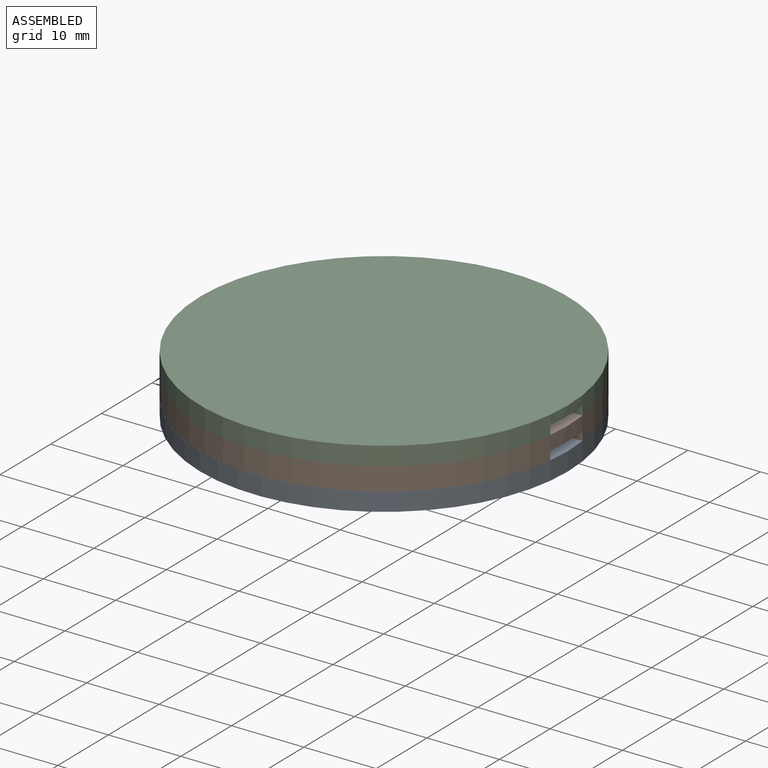
[diagram: assembled view]
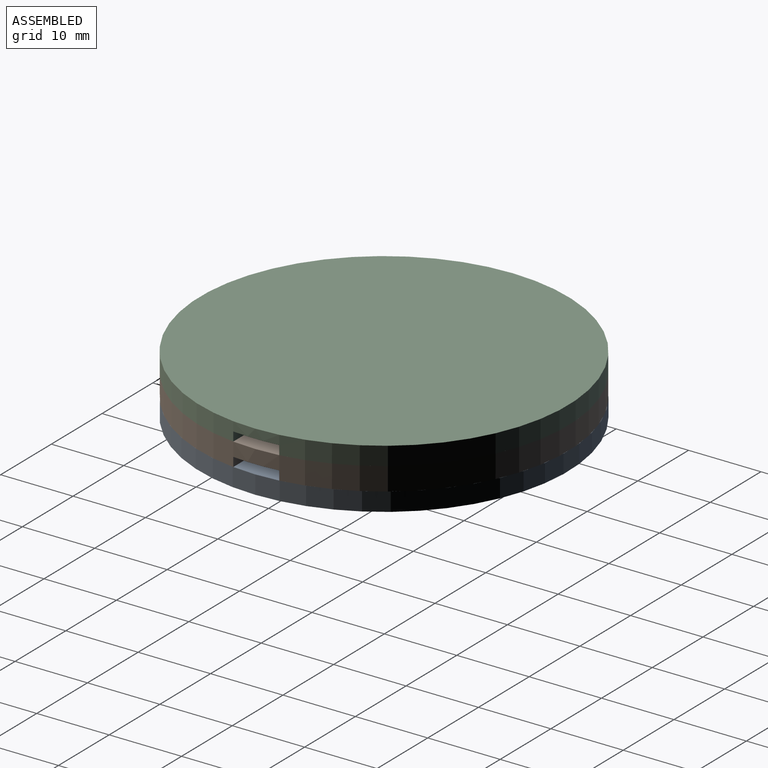
[diagram: assembled view, second angle]
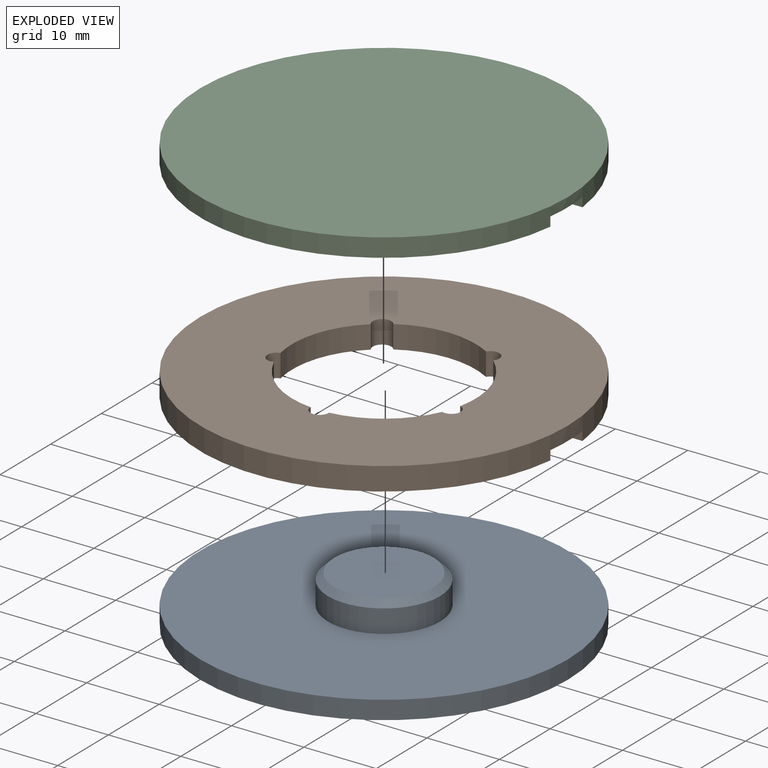
[diagram: exploded view]
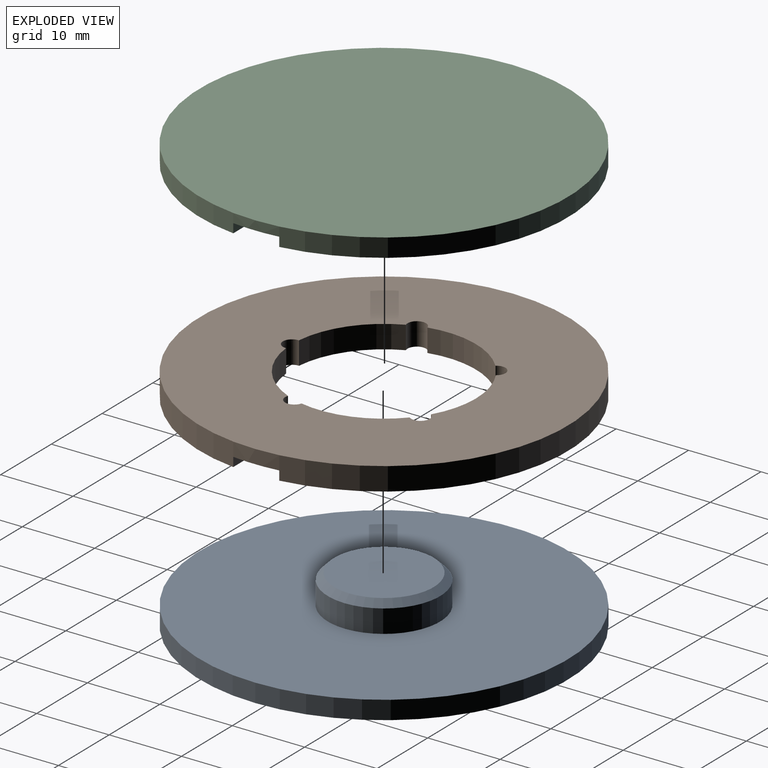
[diagram: exploded view, second angle]
ASSEMBLY  parts=3 mates=4
PART A: 6 faces, bbox 50.8x50.8x6.6 mm
  f0: cylinder r=25.4mm len=50.8mm, axis (0,0,-1), area 405.4mm2, adj f1,f2
  f1: plane 50.8x50.8mm, normal (0,0,1), area 1838.3mm2, adj f0,f3
  f2: plane 50.8x50.8mm, normal (0,0,-1), area 2026.8mm2, adj f0
  f3: cylinder r=7.75mm len=15.49mm, axis (0,0,-1), area 154.5mm2, adj f1,f5
  f4: plane 13.72x13.72mm, normal (0,0,1), area 147.8mm2, adj f5
  f5: cone r=6.86mm half-angle=45deg, axis (0,0,-1), area 57.7mm2, adj f3,f4
PART B: 21 faces, bbox 50.8x50.8x3.2 mm
  f0: plane 50.8x50.4mm, normal (0,0,1), area 1475.8mm2, adj f1,f2,f3,f4,f5,f6,f7,f8
  f1: cylinder r=1.27mm len=3.18mm, axis (0,0,-1), area 13.1mm2, adj f0,f2,f10,f12
  f2: cylinder r=12.7mm len=10.36mm, axis (0,0,-1), area 42.6mm2, adj f0,f1,f3,f12
  f3: cylinder r=1.27mm len=3.18mm, axis (0,0,-1), area 13.1mm2, adj f0,f2,f4,f12
  f4: cylinder r=12.7mm len=12.18mm, axis (0,0,-1), area 42.6mm2, adj f0,f3,f5,f12
  f5: cylinder r=1.27mm len=3.18mm, axis (0,0,-1), area 13.1mm2, adj f0,f4,f6,f12
  f6: cylinder r=12.7mm len=12.8mm, axis (0,0,-1), area 42.6mm2, adj f0,f5,f7,f12
  f7: cylinder r=1.27mm len=3.18mm, axis (0,0,-1), area 13.1mm2, adj f0,f6,f8,f12
  f8: cylinder r=12.7mm len=12.18mm, axis (0,0,-1), area 42.6mm2, adj f0,f7,f9,f12
  f9: cylinder r=1.27mm len=3.18mm, axis (0,0,-1), area 13.1mm2, adj f0,f8,f10,f12
  f10: cylinder r=12.7mm len=10.36mm, axis (0,0,-1), area 42.6mm2, adj f0,f1,f9,f12
  f11: cylinder r=25.4mm len=50.8mm, axis (0,0,-1), area 490.5mm2, adj f0,f12,f13,f15,f16,f17,f18,f20
  f12: plane 50.8x50.8mm, normal (0,0,-1), area 1507.2mm2, adj f1,f2,f3,f4,f5,f6,f7,f8
  f13: plane 2.34x1.27mm, normal (0,-1,0), area 3mm2, adj f0,f11,f14,f16
  f14: plane 6.35x1.27mm, normal (1,0,0), area 8.1mm2, adj f0,f13,f15,f16
  f15: plane 2.34x1.27mm, normal (0,1,0), area 3mm2, adj f0,f11,f14,f16
  f16: plane 6.35x2.54mm, normal (0,0,1), area 15.7mm2, adj f11,f13,f14,f15
  f17: plane 2.34x1.27mm, normal (0,-1,0), area 3mm2, adj f0,f11,f19,f20
  f18: plane 2.34x1.27mm, normal (0,1,0), area 3mm2, adj f0,f11,f19,f20
  f19: plane 6.35x1.27mm, normal (-1,0,0), area 8.1mm2, adj f0,f17,f18,f20
  f20: plane 6.35x2.54mm, normal (0,0,1), area 15.7mm2, adj f11,f17,f18,f19
PART C: 13 faces, bbox 50.8x50.8x2.5 mm
  f0: plane 50.8x50.4mm, normal (0,0,-1), area 1787.9mm2, adj f1,f3,f5,f6,f7,f9,f10,f11
  f1: cylinder r=25.4mm len=50.8mm, axis (0,0,-1), area 389.2mm2, adj f0,f2,f5,f7,f8,f9,f10,f12
  f2: plane 50.8x50.8mm, normal (0,0,1), area 2026.8mm2, adj f1
  f3: cylinder r=8.13mm len=16.26mm, axis (0,0,-1), area 64.9mm2, adj f0,f4
  f4: plane 16.26x16.26mm, normal (0,0,-1), area 207.5mm2, adj f3
  f5: plane 2.34x1.27mm, normal (0,1,0), area 3mm2, adj f0,f1,f6,f8
  f6: plane 6.35x1.27mm, normal (1,0,0), area 8.1mm2, adj f0,f5,f7,f8
  f7: plane 2.34x1.27mm, normal (0,-1,0), area 3mm2, adj f0,f1,f6,f8
  f8: plane 6.35x2.54mm, normal (0,0,-1), area 15.7mm2, adj f1,f5,f6,f7
  f9: plane 2.34x1.27mm, normal (0,1,0), area 3mm2, adj f0,f1,f11,f12
  f10: plane 2.34x1.27mm, normal (0,-1,0), area 3mm2, adj f0,f1,f11,f12
  f11: plane 6.35x1.27mm, normal (-1,0,0), area 8.1mm2, adj f0,f9,f10,f12
  f12: plane 6.35x2.54mm, normal (0,0,-1), area 15.7mm2, adj f1,f9,f10,f11
PLACE A t=(0.06,0,-3.23)mm fixed
PLACE B rot(axis=(1,0,0),180deg) t=(0.06,0,2.49)mm
PLACE C t=(0.06,0,2.49)mm
MATE cylindrical B.f11 <-> C.f1  axis (0,0,1) through (0.06,0,0.9)mm
MATE planar C.f1 <-> B.f10  axis (0,0,-1) through (0.06,0,2.49)mm
MATE cylindrical B.f11 <-> A.f0  axis (0,0,1) through (0.06,0,0.9)mm
MATE planar B.f2 <-> A.f0  axis (0,0,-1) through (0.06,0,-0.69)mm
